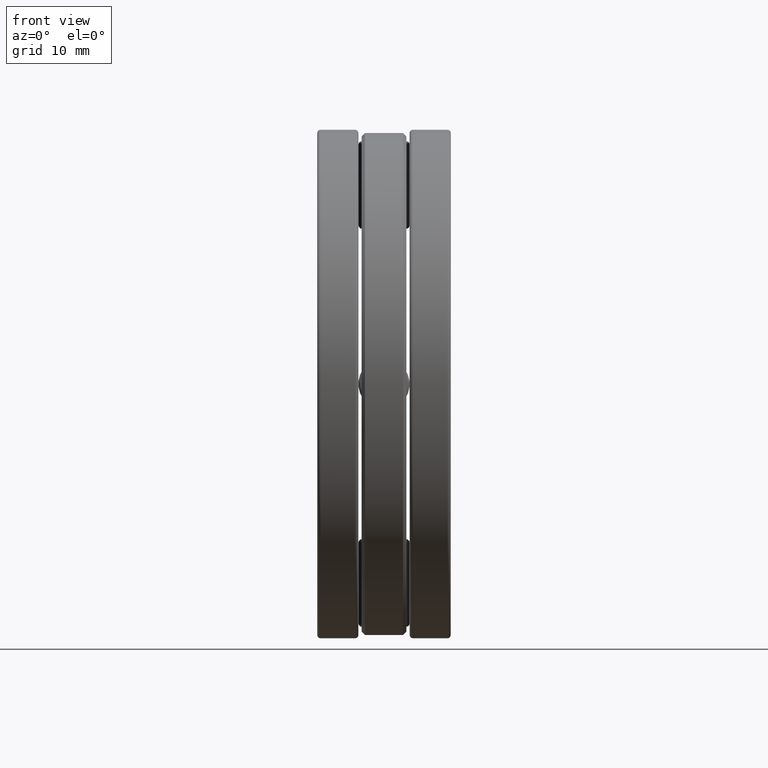
[diagram: clean part render]
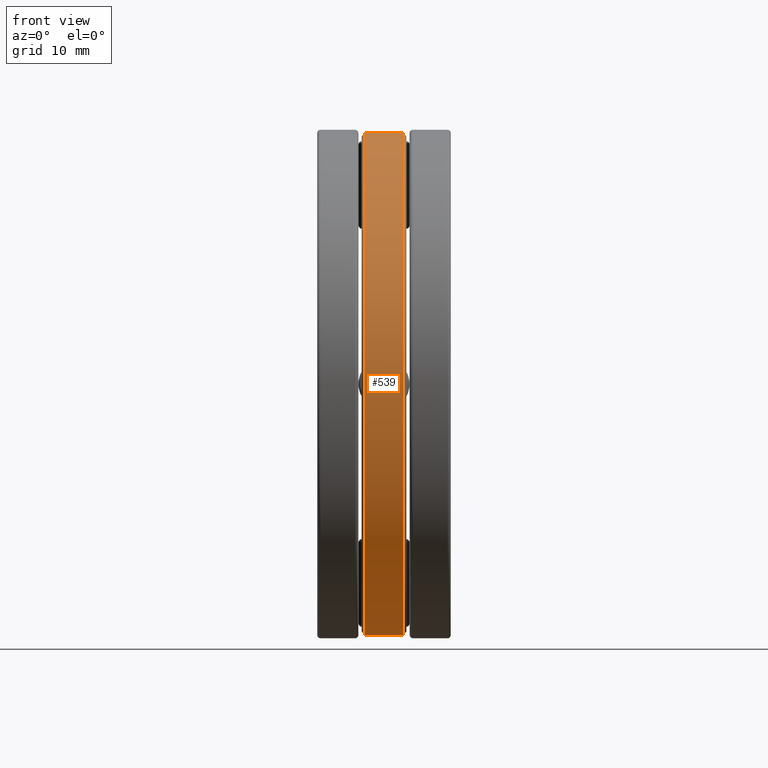
[diagram: same view with one face highlighted and labeled with its STEP entity id]
A machine part, front view. The second image highlights one B-rep face of the part: STEP entity #539.
In plain terms, the highlighted cylindrical surface (bore or boss wall) has radius 38.7826 mm, axis along (-1, -0, -0).
Its self-contained STEP definition (entity closure, byte-faithful):
#44 = CYLINDRICAL_SURFACE ( 'NONE', #146, 1.526875000000000000 ) ;
#122 = DIRECTION ( 'NONE',  ( 0.0000000000000000000, 0.0000000000000000000, 1.000000000000000000 ) ) ;
#146 = AXIS2_PLACEMENT_3D ( 'NONE', #1424, #193, #985 ) ;
#193 = DIRECTION ( 'NONE',  ( -1.000000000000000000, -0.0000000000000000000, -0.0000000000000000000 ) ) ;
#194 = FACE_OUTER_BOUND ( 'NONE', #463, .T. ) ;
#272 = VERTEX_POINT ( 'NONE', #1453 ) ;
#318 = CARTESIAN_POINT ( 'NONE',  ( -0.1160000000000000300, 0.0000000000000000000, 0.0000000000000000000 ) ) ;
#394 = EDGE_CURVE ( 'NONE', #1131, #1131, #1016, .T. ) ;
#444 = ORIENTED_EDGE ( 'NONE', *, *, #1291, .T. ) ;
#463 = EDGE_LOOP ( 'NONE', ( #444 ) ) ;
#476 = AXIS2_PLACEMENT_3D ( 'NONE', #318, #898, #1139 ) ;
#539 = ADVANCED_FACE ( 'NONE', ( #194, #544 ), #44, .T. ) ;
#544 = FACE_OUTER_BOUND ( 'NONE', #1056, .T. ) ;
#546 = CARTESIAN_POINT ( 'NONE',  ( -0.1160000000000000300, 0.0000000000000000000, 1.526875000000000000 ) ) ;
#677 = CARTESIAN_POINT ( 'NONE',  ( 0.1160000000000000100, 0.0000000000000000000, 0.0000000000000000000 ) ) ;
#703 = ORIENTED_EDGE ( 'NONE', *, *, #394, .F. ) ;
#757 = AXIS2_PLACEMENT_3D ( 'NONE', #677, #791, #122 ) ;
#791 = DIRECTION ( 'NONE',  ( -1.000000000000000000, -0.0000000000000000000, -0.0000000000000000000 ) ) ;
#898 = DIRECTION ( 'NONE',  ( -1.000000000000000000, -0.0000000000000000000, -0.0000000000000000000 ) ) ;
#985 = DIRECTION ( 'NONE',  ( 0.0000000000000000000, 0.0000000000000000000, 1.000000000000000000 ) ) ;
#1016 = CIRCLE ( 'NONE', #476, 1.526875000000000000 ) ;
#1056 = EDGE_LOOP ( 'NONE', ( #703 ) ) ;
#1131 = VERTEX_POINT ( 'NONE', #546 ) ;
#1139 = DIRECTION ( 'NONE',  ( 0.0000000000000000000, 0.0000000000000000000, 1.000000000000000000 ) ) ;
#1291 = EDGE_CURVE ( 'NONE', #272, #272, #1307, .T. ) ;
#1307 = CIRCLE ( 'NONE', #757, 1.526875000000000000 ) ;
#1424 = CARTESIAN_POINT ( 'NONE',  ( 0.0000000000000000000, 0.0000000000000000000, 0.0000000000000000000 ) ) ;
#1453 = CARTESIAN_POINT ( 'NONE',  ( 0.1160000000000000100, 0.0000000000000000000, 1.526875000000000000 ) ) ;